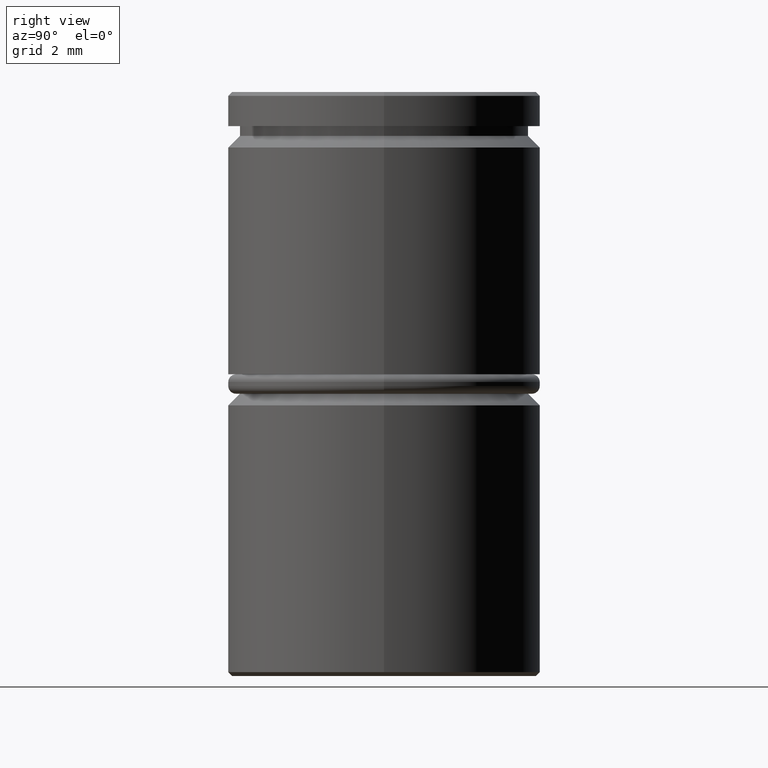
[diagram: clean part render]
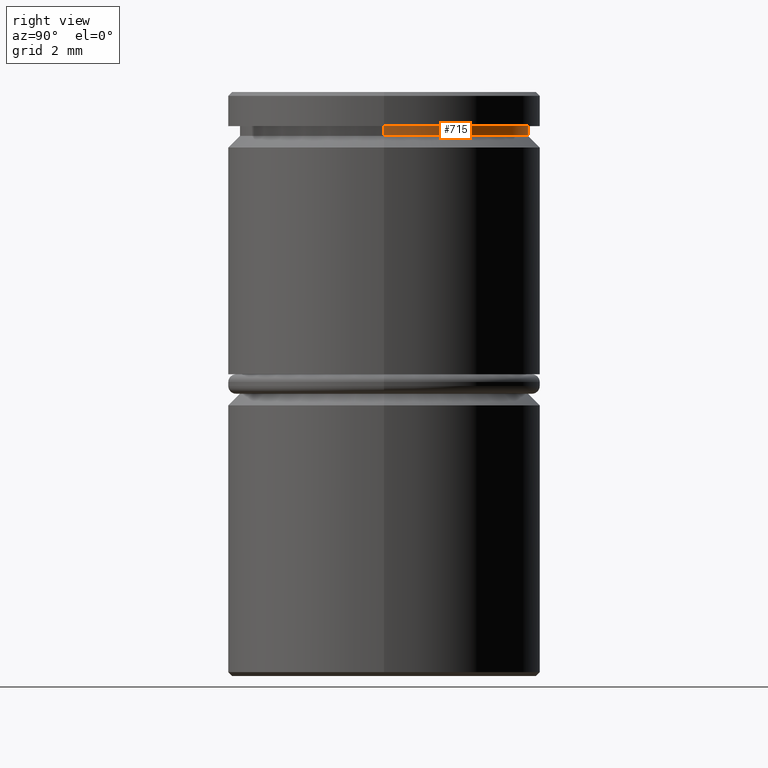
[diagram: same view with one face highlighted and labeled with its STEP entity id]
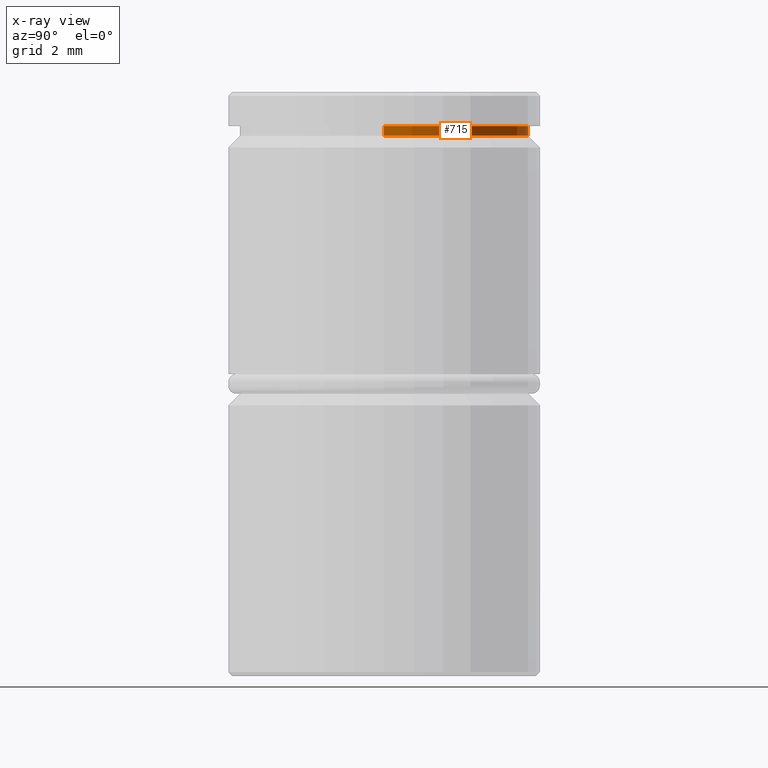
[diagram: x-ray of the same camera — body ghosted, the highlighted face saturated]
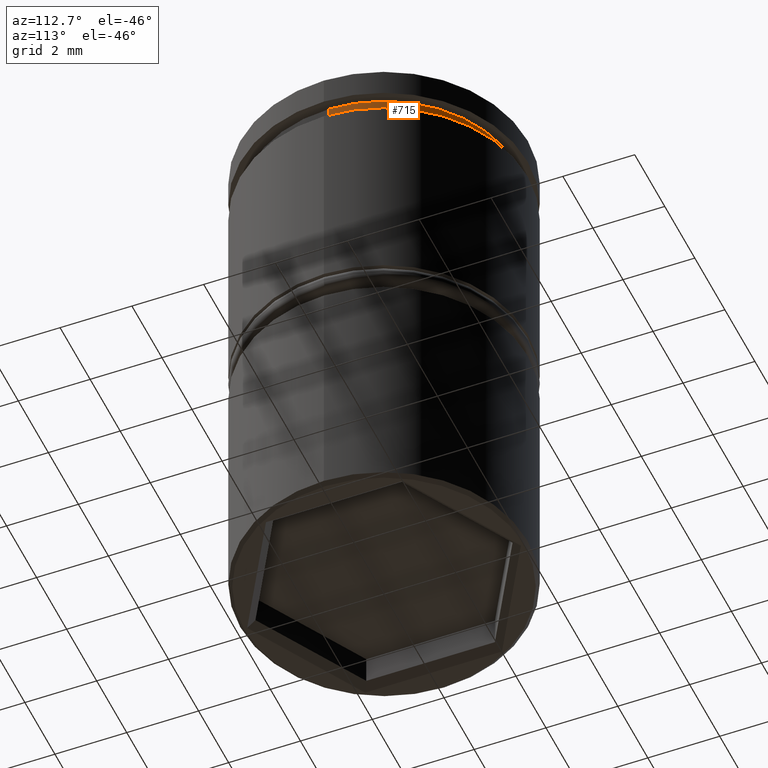
[diagram: same view with one face highlighted and labeled with its STEP entity id]
A machine part, right view. The second image highlights one B-rep face of the part: STEP entity #715.
The next image is the same camera in x-ray: the body ghosted, the highlighted face saturated — about 0% of this face is hidden behind the body in this view.
A second angle (auxiliary view) of the same face is appended — the face is thin or edge-on in the first view.
In plain terms, the highlighted cylindrical surface (partial cylindrical patch) has radius 3.7 mm, axis along (-0, -0, 1).
Its self-contained STEP definition (entity closure, byte-faithful):
#17 = AXIS2_PLACEMENT_3D ( 'NONE', #1124, #677, #484 ) ;
#32 = VERTEX_POINT ( 'NONE', #67 ) ;
#50 = ORIENTED_EDGE ( 'NONE', *, *, #1058, .T. ) ;
#56 = LINE ( 'NONE', #619, #720 ) ;
#67 = CARTESIAN_POINT ( 'NONE',  ( 3.700000000000000178, 0.000000000000000000, -0.8749999999999998890 ) ) ;
#103 = LINE ( 'NONE', #1105, #982 ) ;
#130 = CARTESIAN_POINT ( 'NONE',  ( -3.700000000000000178, 4.531193156845206201E-16, -1.125000000000000222 ) ) ;
#180 = DIRECTION ( 'NONE',  ( -0.000000000000000000, -0.000000000000000000, 1.000000000000000000 ) ) ;
#229 = CIRCLE ( 'NONE', #659, 3.700000000000000178 ) ;
#260 = CARTESIAN_POINT ( 'NONE',  ( 0.000000000000000000, 0.000000000000000000, -1.125000000000000222 ) ) ;
#284 = DIRECTION ( 'NONE',  ( -0.000000000000000000, -0.000000000000000000, 1.000000000000000000 ) ) ;
#324 = FACE_OUTER_BOUND ( 'NONE', #822, .T. ) ;
#335 = DIRECTION ( 'NONE',  ( -0.000000000000000000, -0.000000000000000000, 1.000000000000000000 ) ) ;
#484 = DIRECTION ( 'NONE',  ( 1.000000000000000000, 0.000000000000000000, 0.000000000000000000 ) ) ;
#499 = ORIENTED_EDGE ( 'NONE', *, *, #887, .F. ) ;
#523 = EDGE_CURVE ( 'NONE', #827, #615, #103, .T. ) ;
#566 = AXIS2_PLACEMENT_3D ( 'NONE', #260, #335, #612 ) ;
#586 = CARTESIAN_POINT ( 'NONE',  ( 3.700000000000000178, 0.000000000000000000, -1.125000000000000222 ) ) ;
#612 = DIRECTION ( 'NONE',  ( 1.000000000000000000, 0.000000000000000000, 0.000000000000000000 ) ) ;
#615 = VERTEX_POINT ( 'NONE', #1171 ) ;
#617 = CARTESIAN_POINT ( 'NONE',  ( 0.000000000000000000, 0.000000000000000000, -0.8749999999999998890 ) ) ;
#619 = CARTESIAN_POINT ( 'NONE',  ( 3.700000000000000178, 0.000000000000000000, 0.000000000000000000 ) ) ;
#659 = AXIS2_PLACEMENT_3D ( 'NONE', #617, #1065, #689 ) ;
#677 = DIRECTION ( 'NONE',  ( -0.000000000000000000, -0.000000000000000000, 1.000000000000000000 ) ) ;
#689 = DIRECTION ( 'NONE',  ( 1.000000000000000000, 0.000000000000000000, 0.000000000000000000 ) ) ;
#715 = ADVANCED_FACE ( 'NONE', ( #324 ), #1129, .T. ) ;
#720 = VECTOR ( 'NONE', #180, 1000.000000000000000 ) ;
#773 = CIRCLE ( 'NONE', #566, 3.700000000000000178 ) ;
#822 = EDGE_LOOP ( 'NONE', ( #50, #1166, #499, #1006 ) ) ;
#827 = VERTEX_POINT ( 'NONE', #130 ) ;
#887 = EDGE_CURVE ( 'NONE', #32, #615, #229, .T. ) ;
#982 = VECTOR ( 'NONE', #284, 1000.000000000000000 ) ;
#1006 = ORIENTED_EDGE ( 'NONE', *, *, #1066, .F. ) ;
#1058 = EDGE_CURVE ( 'NONE', #1177, #827, #773, .T. ) ;
#1065 = DIRECTION ( 'NONE',  ( -0.000000000000000000, -0.000000000000000000, 1.000000000000000000 ) ) ;
#1066 = EDGE_CURVE ( 'NONE', #1177, #32, #56, .T. ) ;
#1105 = CARTESIAN_POINT ( 'NONE',  ( -3.700000000000000178, 4.531193156845206201E-16, 0.000000000000000000 ) ) ;
#1124 = CARTESIAN_POINT ( 'NONE',  ( 0.000000000000000000, 0.000000000000000000, 0.000000000000000000 ) ) ;
#1129 = CYLINDRICAL_SURFACE ( 'NONE', #17, 3.700000000000000178 ) ;
#1166 = ORIENTED_EDGE ( 'NONE', *, *, #523, .T. ) ;
#1171 = CARTESIAN_POINT ( 'NONE',  ( -3.700000000000000178, 4.531193156845206201E-16, -0.8749999999999998890 ) ) ;
#1177 = VERTEX_POINT ( 'NONE', #586 ) ;